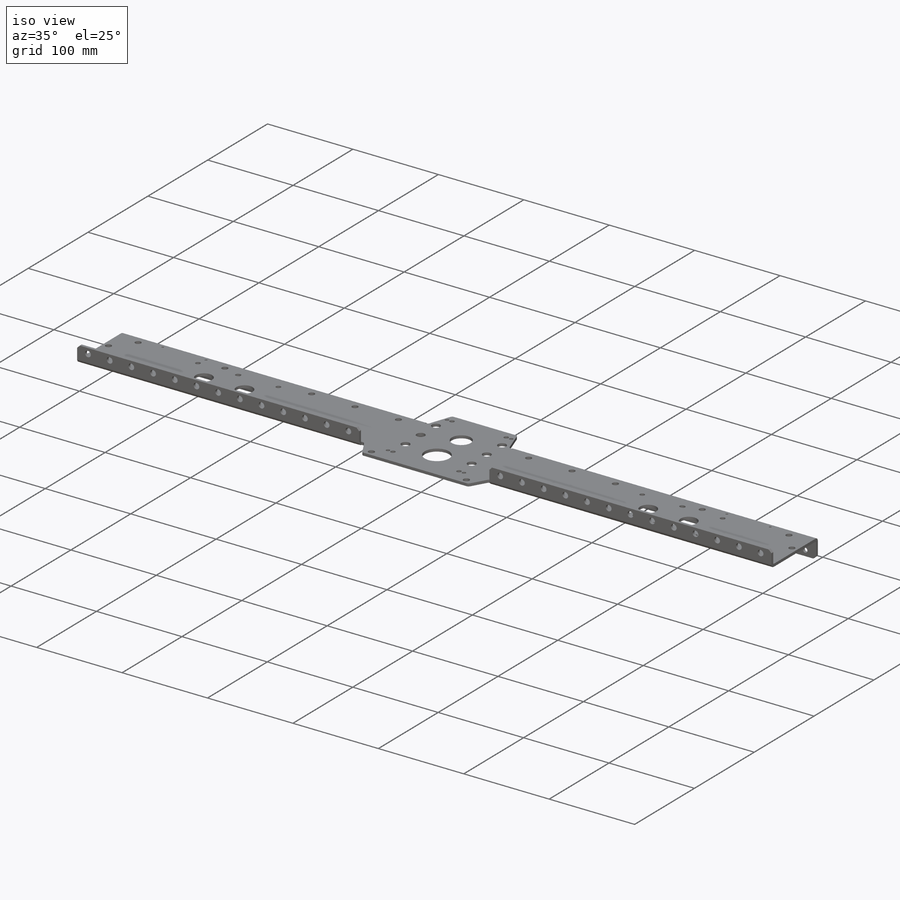
[diagram: iso view]
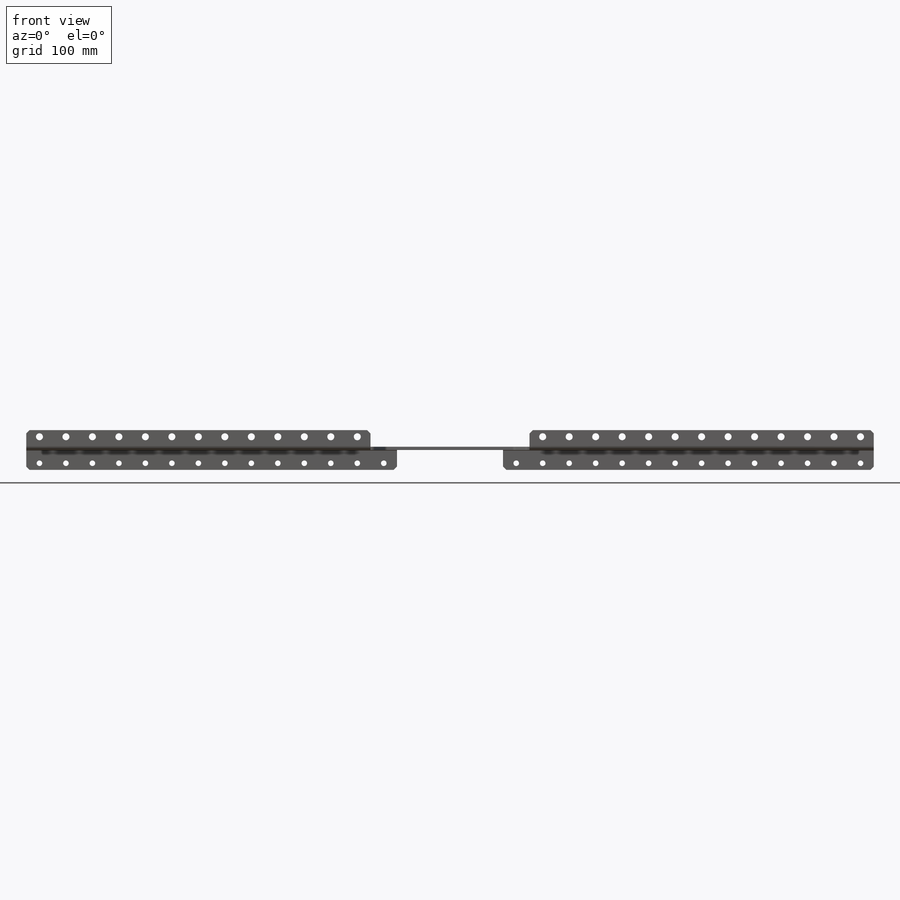
[diagram: front view]
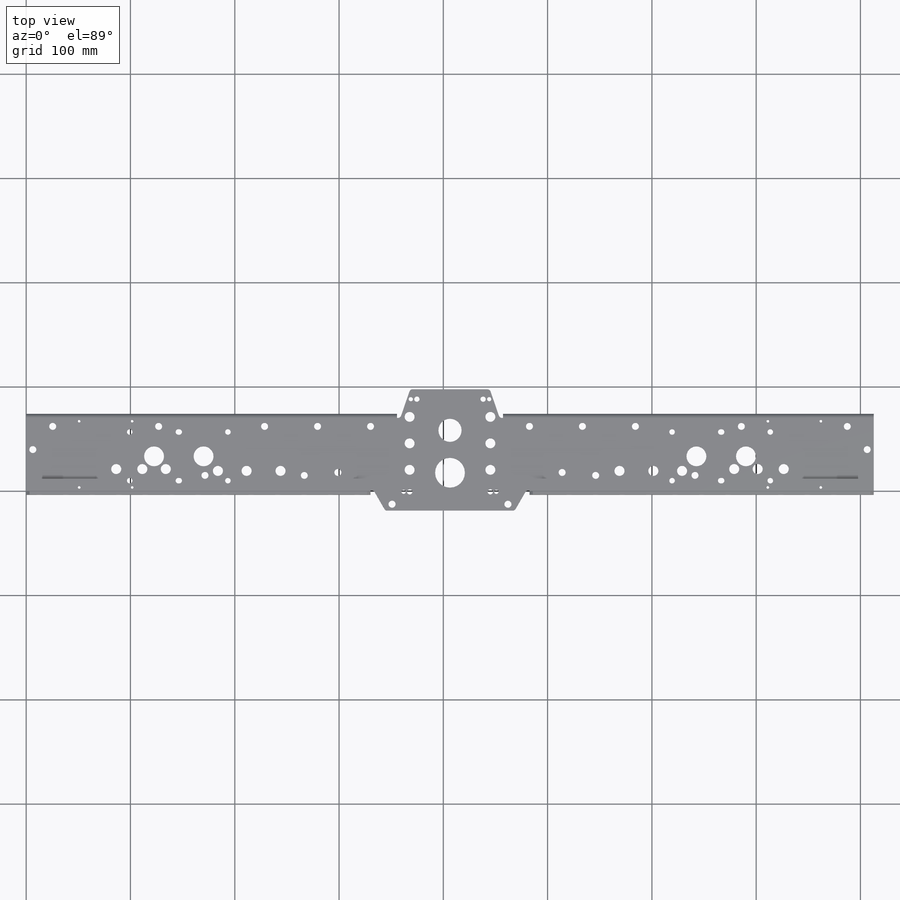
[diagram: top view]
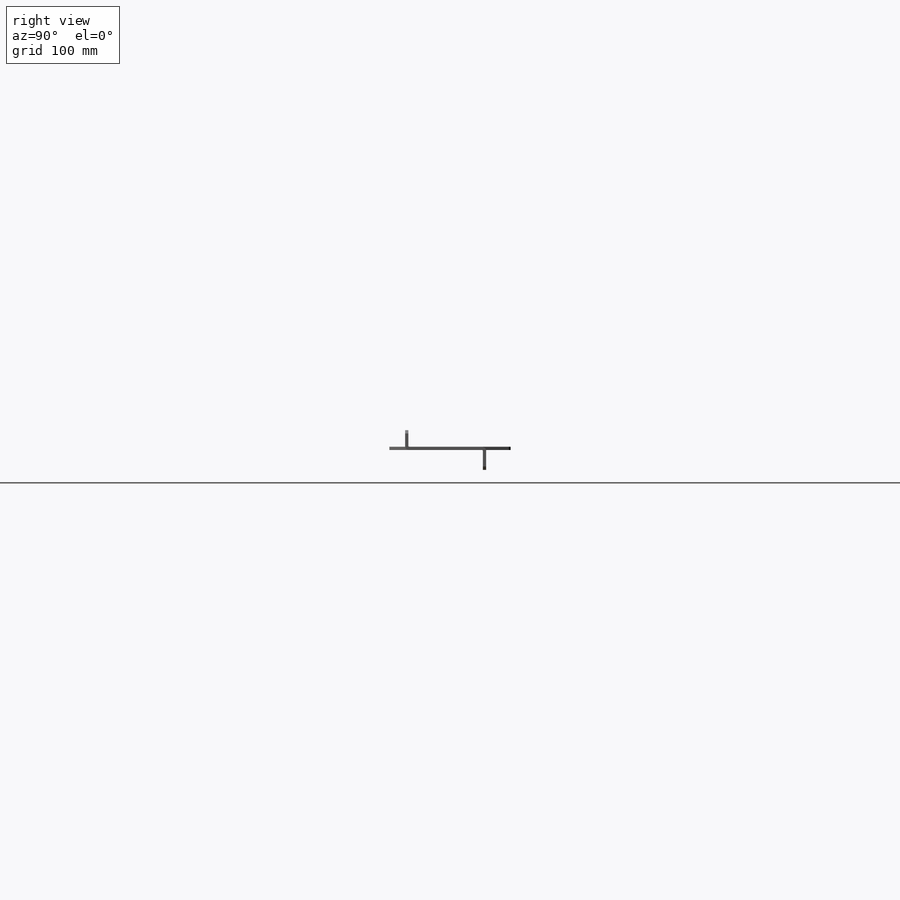
[diagram: right view]
SOLIDWORKS PART (.sldprt)
format: sldprt  version: not decoded by parser v0  size: 1,119,232 bytes
history: native  units: mm
features: sketch x25, cut_extrude x17, extrude x3, sheet_metal_op x2, chamfer x2, material x1, pattern_linear x1, fillet x1 + 1 further entry (+13 scaffold rows collapsed; 1 parser-record rows omitted)
feature tree (67):
  scaffold x13  (default folders/planes/origin — collapsed)
  material  "5052-H32"
  sketch  "Sketch1"  dims[D1=69.85mm D2=812.8mm]
  extrude  "Boss-Extrude1"  Depth=3.175mm
  sheet_metal_op  "Sheet-Metal1"
  sketch  "Sketch3"  dims[D1=28.575mm D2=17.272mm]
  cut_extrude  "Cut-Extrude1"  [1 undecoded]
  sketch  "Sketch6"  dims[c1.D1=0.762mm c1.D4=90.0deg c1.D5=1.0 c1.D8=1.5875mm c1.D9=1.5875mm c2.D1=0.762mm c2.D2=500.0mm c2.D3=0.0mm c2.D6=10.0mm c2.D7=19.05mm]
  sheet_metal_op  "Edge-Flange2"
  sketch  "Sketch9"  dims[c1.EdgeBend2=0.0 c1.D1=0.762mm c1.D4=90.0deg c1.D5=2.0 c1.D8=1.5875mm c1.D9=1.5875mm c2.D1=0.762mm c2.D2=500.0mm c2.D3=0.0mm c2.D6=10.0mm c2.D7=22.225mm]
  sketch  "Sketch10"  dims[c1.D1=~25.412885mm c1.D2=28.575mm c1.D3=9.652mm c2.D1=320.0908mm c2.D2=3.556mm c2.D3=3.556mm c2.D4=~22.50948mm c2.D5=~25.00884mm c3.D1=~320.08064mm c3.D4=~295.07434mm c3.D5=272.5674mm c4.D1=~320.08064mm c4.D4=295.0718mm]
  cut_extrude  "Long 6wd"  [1 undecoded]
  sketch  "Sketch11"  dims[c1.D1=28.575mm c1.D2=9.652mm c1.D3=9.652mm c2.D1=1.778mm c2.D3=222.5548mm c2.D4=~27.50566mm c2.D5=~32.50946mm c3.D3=162.5346mm c3.D4=195.0466mm c3.D5=222.5548mm]
  cut_extrude  "Short 6wd"  [1 undecoded]
  sketch  "Sketch12"  dims[c1.D2=~9.550659mm c1.D3=6.7056mm c1.D1=~107.52582mm c2.D2=187.5536mm]
  cut_extrude  "8wd egg"  [1 undecoded]
  sketch  "Sketch13"  dims[c1.D1=~8.488532mm c1.D4=6.7056mm c2.D1=234.95mm c2.D2=95.25mm c2.D3=2.54mm]
  cut_extrude  "lower churro"  [1 undecoded]
  sketch  "Sketch14"  dims[c1.D1=~9.245188mm c1.D3=5.334mm c2.D1=6.35mm c2.D2=12.7mm c2.D5=25.4mm c2.D4=32.0]
  cut_extrude  "upper flange HP"  [1 undecoded]
  sketch  "Sketch16"  dims[D3=6.7056mm D1=12.7mm D2=6.35mm]
  cut_extrude  "Lower flange HP"  [1 undecoded]
  pattern_linear  "LPattern1"  Count1=32 Count2=1 Spacing1=25.4mm Spacing2=2.54mm
  sketch  "Sketch17"  dims[D1=6.35mm D2=152.4mm]
  cut_extrude  "Cut-Extrude9"  [1 undecoded]
  sketch  "Sketch18"  dims[D1=146.05mm]
  extrude  "Boss-Extrude2"  Depth=19.05mm
  sketch  "Sketch19"  dims[D1=101.6mm]
  cut_extrude  "Cut-Extrude10"  [1 undecoded]
  sketch  "Sketch20"  dims[D1=95.25mm]
  extrude  "Boss-Extrude3"  Depth=27.432mm
  sketch  "Sketch27"  dims[c1.D1=~24.58137mm c2.D1=60.0deg]
  cut_extrude  "Cut-Extrude14"  [1 undecoded]
  sketch  "Sketch21"  dims[c1.D2=22.225mm c1.D3=9.525mm c1.D9=5.08mm c1.D10=4.064mm c1.D13=5.08mm c1.D1=40.6908mm c1.D4=40.6908mm c1.D5=12.4968mm c1.D6=25.4mm c1.D7=63.5mm c1.D8=~70.58152mm c1.D11=5.842mm c1.D12=~18.31086mm c2.D13=77.2922mm]
  cut_extrude  "TB Mini Shaft plate"  [1 undecoded]
  sketch  "Sketch22"  dims[c1.D1=~30.147154mm c2.D1=19.0deg]
  cut_extrude  "Cut-Extrude12"  [1 undecoded]
  sketch  "Sketch23"  dims[c1.D1=6.7056mm c1.D8=6.7056mm c1.D9=28.575mm c1.D2=44.45mm c1.D3=76.2mm c1.D4=101.6mm c1.D5=50.8mm c1.D6=101.6mm c1.D7=6.35mm c2.D9=22.225mm]
  cut_extrude  "Upper internal chirro HP"  [1 undecoded]
  sketch  "Sketch24"  dims[D5=2.54mm D1=50.8mm D2=50.8mm D3=63.5mm D4=22.225mm]
  cut_extrude  "Cutting guides"  [1 undecoded]
  sketch  "Sketch26"  dims[D2=6.8072mm D1=30.1625mm D3=111.125mm]
  cut_extrude  "Sonic mounting holes"  [1 undecoded]
  sketch  "Sketch25"  dims[c1.D1=19.05mm c1.D4=9.652mm c1.D7=~8.026463mm c1.D8=5.334mm c1.D9=5.334mm c1.D10=5.334mm c1.D13=15.875mm c1.D14=28.575mm c1.D12=152.4mm c1.D2=116.332mm c1.D3=54.991mm c2.D4=152.4mm c2.D5=31.75mm c2.D6=31.75mm c2.D7=29.0576mm c2.D10=21.7424mm c2.D11=406.4mm c2.D13=76.2mm c2.D14=54.991mm c2.D15=~166.23757mm c3.D13=12.7mm c3.D14=~32.219923mm c3.D4=~31.870049mm c4.D4=~159.500526deg c5.D4=152.4mm c5.D3=52.07mm c6.D4=33.02mm]
  cut_extrude  "mecanum long"  Depth=3.175mm
  fillet  "Fillet1"  Radius=3.175mm
  chamfer  "Chamfer1"  Distance=3.175mm
  sketch  "Sketch28"  dims[c1.D1=152.4mm c1.D3=152.4mm c1.D2=12.7mm c2.D3=2.54mm c2.D4=~49.817184mm]
  sketch  "Sketch29"  dims[c1.D1=152.4mm c1.D5=5.334mm c2.D1=~19.399214mm c2.D2=13.081mm c2.D3=3.175mm c2.D4=~47.484398mm c2.D5=~4.582602mm]
  cut_extrude  "Cut-Extrude15"  [1 undecoded]
  "Flat-Pattern1"
  sketch  "Bend-Lines1"
  sketch  "Bounding-Box1"
  chamfer  "Flatten-<EdgeBend2>1"  [1 undecoded]
  parser-record x1  (decoder bookkeeping rows leaked as tree rows — omitted from the tree; the rows remain in map.json)
decode coverage: 30 of 51 modeling features carry decoded parameters; 1 rows unclassified (native names shown)
note: ~ marks probable driven/reference dimensions
note: 17 parameter values undecoded
summary: no parameter record found for 17 features
note: suppression state not decoded; provenance and decode notes live in map.json
